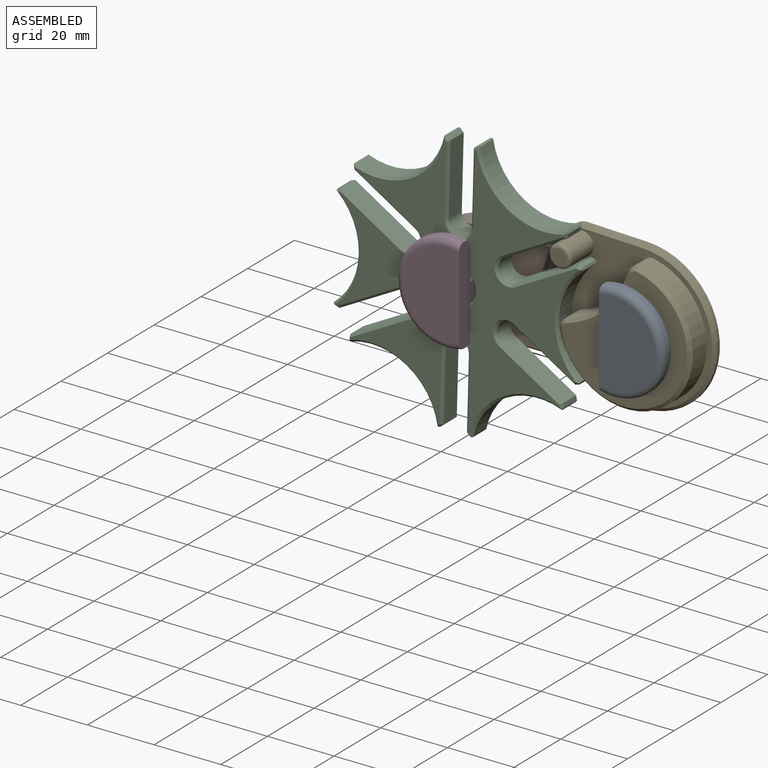
[diagram: assembled view]
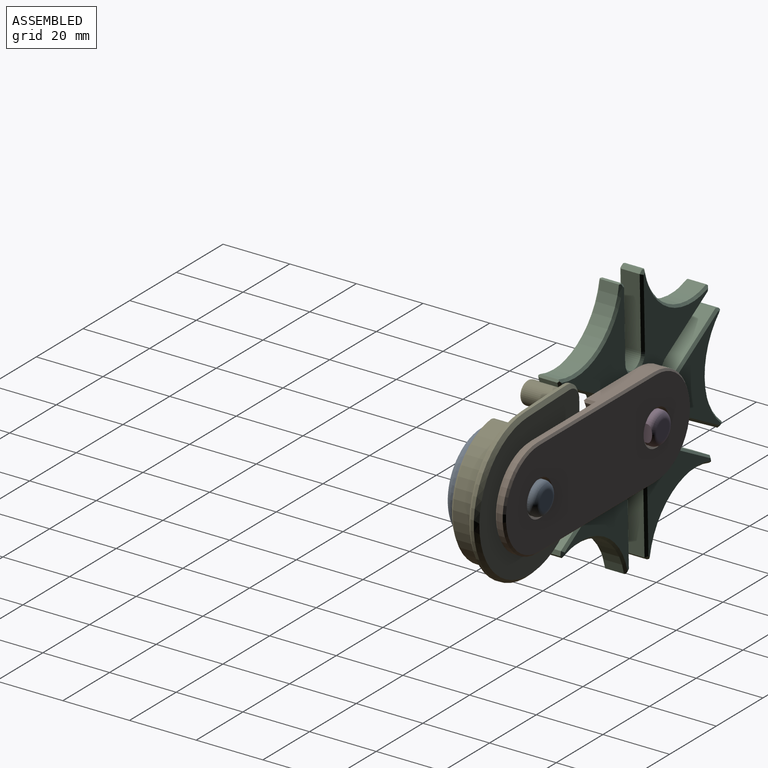
[diagram: assembled view, second angle]
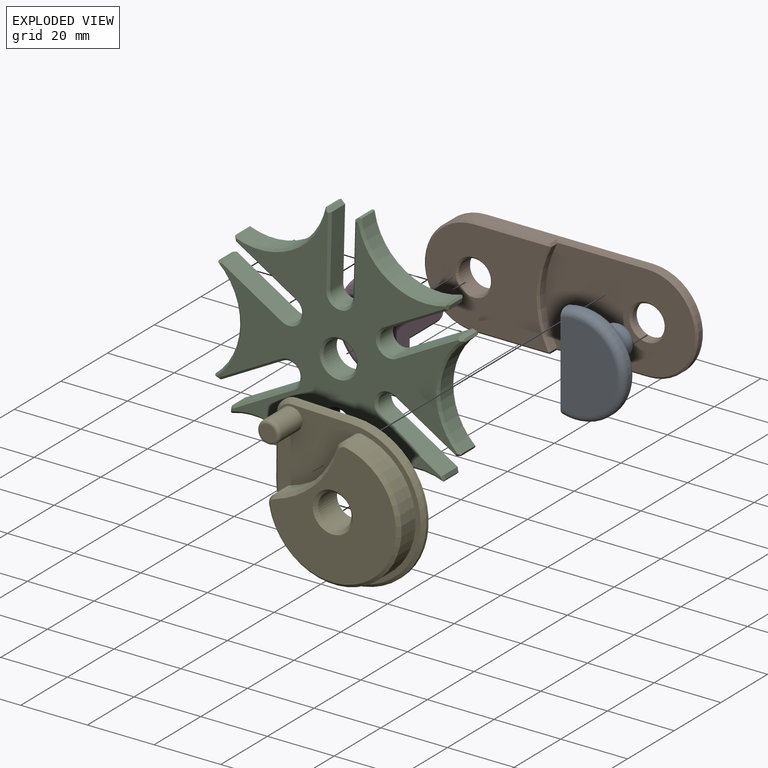
[diagram: exploded view]
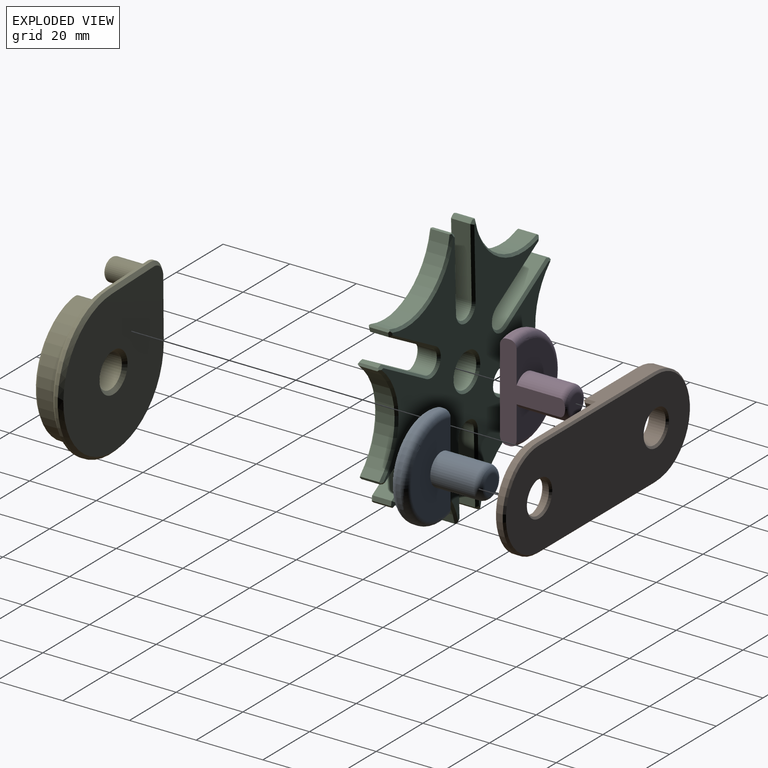
[diagram: exploded view, second angle]
ASSEMBLY  parts=5 mates=4
PART A: 9 faces, bbox 20x32.5x21.4 mm
  f0: torus R=13mm, axis (-1,0,0), area 166.3mm2, adj f1,f5,f8
  f1: plane 26x17mm, normal (-1,0,0), area 367.8mm2, adj f0,f8
  f2: plane 5.5x5.5mm, normal (1,0,0), area 23.8mm2, adj f6
  f3: cylinder r=4.75mm len=13mm, axis (-1,0,0), area 317.6mm2, adj f4,f6,f8
  f4: plane 26x17mm, normal (1,0,0), area 299.5mm2, adj f3,f7,f8
  f5: cylinder r=15mm len=30mm, axis (-1,0,0), area 55.2mm2, adj f0,f7,f8
  f6: torus R=2.75mm, axis (1,0,0), area 72mm2, adj f2,f3,f8
  f7: torus R=13mm, axis (1,0,0), area 166.3mm2, adj f4,f5,f8
  f8: plane 28.92x19.56mm, normal (0,0,-1), area 214mm2, adj f0,f1,f3,f4,f5,f6,f7
PART B: 29 faces, bbox 80x6x30 mm
  f0: plane 50x4.83mm, normal (0,0,1), area 159mm2, adj f2,f3,f14,f18,f20,f23
  f1: cylinder r=4.85mm len=9.7mm, axis (0,1,0), area 55.8mm2, adj f25,f27
  f2: cylinder r=15mm len=30mm, axis (0,1,0), area 86.4mm2, adj f0,f4,f19,f24
  f3: cylinder r=15mm len=30mm, axis (0,1,0), area 227.7mm2, adj f0,f4,f11,f21
  f4: plane 50x4.83mm, normal (0,0,-1), area 159mm2, adj f2,f3,f10,f15,f17,f22
  f5: cylinder r=4.85mm len=9.7mm, axis (0,1,0), area 147.3mm2, adj f26,f28
  f6: plane 36.88x28.83mm, normal (0,-1,0), area 812.4mm2, adj f10,f11,f13,f14,f28
  f7: plane 78.83x28.83mm, normal (0,1,0), area 1909mm2, adj f21,f22,f23,f24,f25,f26
  f8: cylinder r=30.5mm len=28.29mm, axis (0,-1,0), area 71.1mm2, adj f9,f13,f15,f18
  f9: plane 44.92x28.83mm, normal (0,-1,0), area 1079.2mm2, adj f8,f15,f17,f18,f19,f20,f27
  f10: plane 22.46x0.58mm, normal (0,-0.71,-0.71), area 18.5mm2, adj f4,f6,f11,f12
  f11: cone r=14.42mm half-angle=45deg, axis (0,1,0), area 38.1mm2, adj f3,f6,f10,f14
  f12: plane 0.85x0.58mm, normal (0.76,-0.46,-0.46), area 0.3mm2, adj f10,f13,f15
  f13: cone r=30.5mm half-angle=45deg, axis (0,-1,0), area 24.5mm2, adj f6,f8,f12,f16
  f14: plane 22.46x0.58mm, normal (0,-0.71,0.71), area 18.5mm2, adj f0,f6,f11,f16
  f15: plane 3x0.85mm, normal (0.86,0,-0.52), area 2.6mm2, adj f4,f8,f9,f12,f17
  f16: plane 0.85x0.58mm, normal (0.76,-0.46,0.46), area 0.3mm2, adj f13,f14,f18
  f17: plane 27.54x0.58mm, normal (0,-0.71,-0.71), area 22.6mm2, adj f4,f9,f15,f19
  f18: plane 3x0.85mm, normal (0.86,0,0.52), area 2.6mm2, adj f0,f8,f9,f16,f20
  f19: cone r=14.42mm half-angle=45deg, axis (0,1,0), area 38.1mm2, adj f2,f9,f17,f20
  f20: plane 27.54x0.58mm, normal (0,-0.71,0.71), area 22.6mm2, adj f0,f9,f18,f19
  f21: cone r=15mm half-angle=45deg, axis (0,-1,0), area 38.1mm2, adj f3,f7,f22,f23
  f22: plane 50x0.58mm, normal (0,0.71,-0.71), area 41.3mm2, adj f4,f7,f21,f24
  f23: plane 50x0.58mm, normal (0,0.71,0.71), area 41.3mm2, adj f0,f7,f21,f24
  f24: cone r=15mm half-angle=45deg, axis (0,-1,0), area 38.1mm2, adj f2,f7,f22,f23
  f25: cone r=5.43mm half-angle=45deg, axis (0,1,0), area 26.7mm2, adj f1,f7
  f26: cone r=5.43mm half-angle=45deg, axis (0,1,0), area 26.7mm2, adj f5,f7
  f27: cone r=4.85mm half-angle=45deg, axis (0,-1,0), area 26.7mm2, adj f1,f9
  f28: cone r=4.85mm half-angle=45deg, axis (0,-1,0), area 26.7mm2, adj f5,f6
PART C: 125 faces, bbox 74.2x7x79.5 mm
  f0: plane 21.33x5.6mm, normal (1,0,0), area 119.5mm2, adj f35,f47,f74,f111
  f1: cylinder r=40mm len=6.29mm, axis (0,1,0), area 4.9mm2, adj f2,f47,f70,f72,f107,f109
  f2: cylinder r=20mm len=26.33mm, axis (0,1,0), area 193.4mm2, adj f1,f3,f70,f107
  f3: cylinder r=40mm len=6.29mm, axis (0,1,0), area 4.9mm2, adj f2,f46,f68,f70,f105,f107
  f4: plane 18.48x10.67mm, normal (-0.5,0,-0.87), area 119.5mm2, adj f5,f46,f66,f103
  f5: cylinder r=3.5mm len=6.53mm, axis (0,1,0), area 61.6mm2, adj f4,f6,f64,f101
  f6: plane 18.48x10.67mm, normal (0.5,0,0.87), area 119.5mm2, adj f5,f45,f62,f99
  f7: cylinder r=40mm len=6.29mm, axis (0,1,0), area 4.9mm2, adj f8,f45,f58,f60,f95,f97
  f8: cylinder r=20mm len=30.4mm, axis (0,1,0), area 193.4mm2, adj f7,f9,f58,f95
  f9: cylinder r=40mm len=6.29mm, axis (0,1,0), area 4.9mm2, adj f8,f44,f56,f58,f93,f95
  f10: plane 18.48x10.67mm, normal (0.5,0,-0.87), area 119.5mm2, adj f11,f44,f54,f91
  f11: cylinder r=3.5mm len=6.53mm, axis (0,1,0), area 61.6mm2, adj f10,f12,f52,f89
  f12: plane 18.48x10.67mm, normal (-0.5,0,0.87), area 119.5mm2, adj f11,f43,f51,f88
  f13: cylinder r=40mm len=6.29mm, axis (0,1,0), area 4.9mm2, adj f14,f43,f53,f55,f90,f92
  f14: cylinder r=20mm len=26.33mm, axis (0,1,0), area 193.4mm2, adj f13,f15,f55,f92
  f15: cylinder r=40mm len=6.29mm, axis (0,1,0), area 4.9mm2, adj f14,f42,f55,f57,f92,f94
  f16: plane 21.33x5.6mm, normal (1,0,0), area 119.5mm2, adj f17,f42,f59,f96
  f17: cylinder r=3.5mm len=7mm, axis (0,1,0), area 61.6mm2, adj f16,f18,f61,f98
  f18: plane 21.33x5.6mm, normal (-1,0,0), area 119.5mm2, adj f17,f41,f63,f100
  f19: cylinder r=40mm len=6.29mm, axis (0,1,0), area 4.9mm2, adj f20,f41,f65,f67,f102,f104
  f20: cylinder r=20mm len=26.33mm, axis (0,1,0), area 193.4mm2, adj f19,f21,f67,f104
  f21: cylinder r=40mm len=6.29mm, axis (0,1,0), area 4.9mm2, adj f20,f40,f67,f69,f104,f106
  f22: plane 18.48x10.67mm, normal (0.5,0,0.87), area 119.5mm2, adj f23,f40,f71,f108
  f23: cylinder r=3.5mm len=6.53mm, axis (0,1,0), area 61.6mm2, adj f22,f24,f73,f110
  f24: plane 18.48x10.67mm, normal (-0.5,0,-0.87), area 119.5mm2, adj f23,f39,f75,f112
  f25: cylinder r=40mm len=6.29mm, axis (0,1,0), area 4.9mm2, adj f26,f39,f77,f79,f114,f116
  f26: cylinder r=20mm len=30.4mm, axis (0,1,0), area 193.4mm2, adj f25,f27,f79,f116
  f27: cylinder r=40mm len=6.29mm, axis (0,1,0), area 4.9mm2, adj f26,f50,f79,f81,f116,f118
  f28: plane 18.48x10.67mm, normal (-0.5,0,0.87), area 119.5mm2, adj f29,f50,f83,f120
  f29: cylinder r=3.5mm len=6.53mm, axis (0,1,0), area 61.6mm2, adj f28,f30,f85,f122
  f30: plane 18.48x10.67mm, normal (0.5,0,-0.87), area 119.5mm2, adj f29,f49,f86,f123
  f31: cylinder r=40mm len=6.29mm, axis (0,1,0), area 4.9mm2, adj f32,f49,f82,f84,f119,f121
  f32: cylinder r=20mm len=26.33mm, axis (0,1,0), area 193.4mm2, adj f31,f33,f82,f119
  f33: cylinder r=40mm len=6.29mm, axis (0,1,0), area 4.9mm2, adj f32,f48,f80,f82,f117,f119
  f34: plane 21.33x5.6mm, normal (-1,0,0), area 119.5mm2, adj f35,f48,f78,f115
  f35: cylinder r=3.5mm len=7mm, axis (0,1,0), area 61.6mm2, adj f0,f34,f76,f113
  f36: cylinder r=5mm len=10mm, axis (0,1,0), area 175.9mm2, adj f87,f124
  f37: plane 78.02x72.32mm, normal (0,-1,0), area 2219.8mm2, adj f51,f52,f53,f54,f55,f56,f57,f58
  f38: plane 78.02x72.32mm, normal (0,1,0), area 2219.8mm2, adj f88,f89,f90,f91,f92,f93,f94,f95
  f39: plane 5.6x1.3mm, normal (0.31,0,-0.95), area 7.7mm2, adj f24,f25,f77,f114
  f40: plane 5.6x1.34mm, normal (0.98,0,0.2), area 7.7mm2, adj f21,f22,f69,f106
  f41: plane 5.6x1.02mm, normal (-0.67,0,-0.75), area 7.7mm2, adj f18,f19,f65,f102
  f42: plane 5.6x1.02mm, normal (0.67,0,-0.75), area 7.7mm2, adj f15,f16,f57,f94
  f43: plane 5.6x1.34mm, normal (-0.98,0,0.2), area 7.7mm2, adj f12,f13,f53,f90
  f44: plane 5.6x1.3mm, normal (-0.31,0,-0.95), area 7.7mm2, adj f9,f10,f56,f93
  f45: plane 5.6x1.3mm, normal (-0.31,0,0.95), area 7.7mm2, adj f6,f7,f60,f97
  f46: plane 5.6x1.34mm, normal (-0.98,0,-0.2), area 7.7mm2, adj f3,f4,f68,f105
  f47: plane 5.6x1.02mm, normal (0.67,0,0.75), area 7.7mm2, adj f0,f1,f72,f109
  f48: plane 5.6x1.02mm, normal (-0.67,0,0.75), area 7.7mm2, adj f33,f34,f80,f117
  f49: plane 5.6x1.34mm, normal (0.98,0,-0.2), area 7.7mm2, adj f30,f31,f84,f121
  f50: plane 5.6x1.3mm, normal (0.31,0,0.95), area 7.7mm2, adj f27,f28,f81,f118
  f51: plane 18.83x11.12mm, normal (-0.35,-0.71,0.61), area 21mm2, adj f12,f37,f52,f53
  f52: cone r=3.5mm half-angle=45deg, axis (0,-1,0), area 12mm2, adj f11,f37,f51,f54
  f53: plane 1.71x0.91mm, normal (-0.69,-0.71,0.14), area 1.3mm2, adj f13,f37,f43,f51,f55
  f54: plane 18.55x11.27mm, normal (0.35,-0.71,-0.61), area 21mm2, adj f10,f37,f52,f56
  f55: cone r=20mm half-angle=45deg, axis (0,-1,0), area 34.6mm2, adj f13,f14,f15,f37,f53,f57
  f56: plane 1.49x1mm, normal (-0.22,-0.71,-0.67), area 1.3mm2, adj f9,f37,f44,f54,f58
  f57: plane 1.48x1.23mm, normal (0.47,-0.71,-0.53), area 1.3mm2, adj f15,f37,f42,f55,f59
  f58: cone r=20mm half-angle=45deg, axis (0,-1,0), area 34.6mm2, adj f7,f8,f9,f37,f56,f60
  f59: plane 21.33x0.7mm, normal (0.71,-0.71,0), area 21mm2, adj f16,f37,f57,f61
  f60: plane 1.49x1mm, normal (-0.22,-0.71,0.67), area 1.3mm2, adj f7,f37,f45,f58,f62
  f61: cone r=3.5mm half-angle=45deg, axis (0,-1,0), area 12mm2, adj f17,f37,f59,f63
  f62: plane 18.55x11.27mm, normal (0.35,-0.71,0.61), area 21mm2, adj f6,f37,f60,f64
  f63: plane 21.33x0.7mm, normal (-0.71,-0.71,0), area 21mm2, adj f18,f37,f61,f65
  f64: cone r=3.5mm half-angle=45deg, axis (0,-1,0), area 12mm2, adj f5,f37,f62,f66
  f65: plane 1.48x1.23mm, normal (-0.47,-0.71,-0.53), area 1.3mm2, adj f19,f37,f41,f63,f67
  f66: plane 18.83x11.12mm, normal (-0.35,-0.71,-0.61), area 21mm2, adj f4,f37,f64,f68
  f67: cone r=20mm half-angle=45deg, axis (0,-1,0), area 34.6mm2, adj f19,f20,f21,f37,f65,f69
  f68: plane 1.71x0.91mm, normal (-0.69,-0.71,-0.14), area 1.3mm2, adj f3,f37,f46,f66,f70
  f69: plane 1.71x0.91mm, normal (0.69,-0.71,0.14), area 1.3mm2, adj f21,f37,f40,f67,f71
  f70: cone r=20mm half-angle=45deg, axis (0,-1,0), area 34.6mm2, adj f1,f2,f3,f37,f68,f72
  f71: plane 18.83x11.12mm, normal (0.35,-0.71,0.61), area 21mm2, adj f22,f37,f69,f73
  f72: plane 1.48x1.23mm, normal (0.47,-0.71,0.53), area 1.3mm2, adj f1,f37,f47,f70,f74
  f73: cone r=3.5mm half-angle=45deg, axis (0,-1,0), area 12mm2, adj f23,f37,f71,f75
  f74: plane 21.33x0.7mm, normal (0.71,-0.71,0), area 21mm2, adj f0,f37,f72,f76
  f75: plane 18.55x11.27mm, normal (-0.35,-0.71,-0.61), area 21mm2, adj f24,f37,f73,f77
  f76: cone r=3.5mm half-angle=45deg, axis (0,-1,0), area 12mm2, adj f35,f37,f74,f78
  f77: plane 1.49x1mm, normal (0.22,-0.71,-0.67), area 1.3mm2, adj f25,f37,f39,f75,f79
  f78: plane 21.33x0.7mm, normal (-0.71,-0.71,0), area 21mm2, adj f34,f37,f76,f80
  f79: cone r=20mm half-angle=45deg, axis (0,-1,0), area 34.6mm2, adj f25,f26,f27,f37,f77,f81
  f80: plane 1.48x1.23mm, normal (-0.47,-0.71,0.53), area 1.3mm2, adj f33,f37,f48,f78,f82
  f81: plane 1.49x1mm, normal (0.22,-0.71,0.67), area 1.3mm2, adj f27,f37,f50,f79,f83
  f82: cone r=20mm half-angle=45deg, axis (0,-1,0), area 34.6mm2, adj f31,f32,f33,f37,f80,f84
  f83: plane 18.55x11.27mm, normal (-0.35,-0.71,0.61), area 21mm2, adj f28,f37,f81,f85
  f84: plane 1.71x0.91mm, normal (0.69,-0.71,-0.14), area 1.3mm2, adj f31,f37,f49,f82,f86
  f85: cone r=3.5mm half-angle=45deg, axis (0,-1,0), area 12mm2, adj f29,f37,f83,f86
  f86: plane 18.83x11.12mm, normal (0.35,-0.71,-0.61), area 21mm2, adj f30,f37,f84,f85
  f87: cone r=5mm half-angle=45deg, axis (0,-1,0), area 33.3mm2, adj f36,f37
  f88: plane 18.83x11.12mm, normal (-0.35,0.71,0.61), area 21mm2, adj f12,f38,f89,f90
  f89: cone r=4.2mm half-angle=45deg, axis (0,1,0), area 12mm2, adj f11,f38,f88,f91
  f90: plane 1.71x0.91mm, normal (-0.69,0.71,0.14), area 1.3mm2, adj f13,f38,f43,f88,f92
  f91: plane 18.55x11.27mm, normal (0.35,0.71,-0.61), area 21mm2, adj f10,f38,f89,f93
  f92: cone r=20.7mm half-angle=45deg, axis (0,1,0), area 34.6mm2, adj f13,f14,f15,f38,f90,f94
  f93: plane 1.49x1mm, normal (-0.22,0.71,-0.67), area 1.3mm2, adj f9,f38,f44,f91,f95
  f94: plane 1.48x1.23mm, normal (0.47,0.71,-0.53), area 1.3mm2, adj f15,f38,f42,f92,f96
  f95: cone r=20.7mm half-angle=45deg, axis (0,1,0), area 34.6mm2, adj f7,f8,f9,f38,f93,f97
  f96: plane 21.33x0.7mm, normal (0.71,0.71,0), area 21mm2, adj f16,f38,f94,f98
  f97: plane 1.49x1mm, normal (-0.22,0.71,0.67), area 1.3mm2, adj f7,f38,f45,f95,f99
  f98: cone r=4.2mm half-angle=45deg, axis (0,1,0), area 12mm2, adj f17,f38,f96,f100
  f99: plane 18.55x11.27mm, normal (0.35,0.71,0.61), area 21mm2, adj f6,f38,f97,f101
  f100: plane 21.33x0.7mm, normal (-0.71,0.71,0), area 21mm2, adj f18,f38,f98,f102
  f101: cone r=4.2mm half-angle=45deg, axis (0,1,0), area 12mm2, adj f5,f38,f99,f103
  f102: plane 1.48x1.23mm, normal (-0.47,0.71,-0.53), area 1.3mm2, adj f19,f38,f41,f100,f104
  f103: plane 18.83x11.12mm, normal (-0.35,0.71,-0.61), area 21mm2, adj f4,f38,f101,f105
  f104: cone r=20.7mm half-angle=45deg, axis (0,1,0), area 34.6mm2, adj f19,f20,f21,f38,f102,f106
  f105: plane 1.71x0.91mm, normal (-0.69,0.71,-0.14), area 1.3mm2, adj f3,f38,f46,f103,f107
  f106: plane 1.71x0.91mm, normal (0.69,0.71,0.14), area 1.3mm2, adj f21,f38,f40,f104,f108
  f107: cone r=20.7mm half-angle=45deg, axis (0,1,0), area 34.6mm2, adj f1,f2,f3,f38,f105,f109
  f108: plane 18.83x11.12mm, normal (0.35,0.71,0.61), area 21mm2, adj f22,f38,f106,f110
  f109: plane 1.48x1.23mm, normal (0.47,0.71,0.53), area 1.3mm2, adj f1,f38,f47,f107,f111
  f110: cone r=4.2mm half-angle=45deg, axis (0,1,0), area 12mm2, adj f23,f38,f108,f112
  f111: plane 21.33x0.7mm, normal (0.71,0.71,0), area 21mm2, adj f0,f38,f109,f113
  f112: plane 18.55x11.27mm, normal (-0.35,0.71,-0.61), area 21mm2, adj f24,f38,f110,f114
  f113: cone r=4.2mm half-angle=45deg, axis (0,1,0), area 12mm2, adj f35,f38,f111,f115
  f114: plane 1.49x1mm, normal (0.22,0.71,-0.67), area 1.3mm2, adj f25,f38,f39,f112,f116
  f115: plane 21.33x0.7mm, normal (-0.71,0.71,0), area 21mm2, adj f34,f38,f113,f117
  f116: cone r=20.7mm half-angle=45deg, axis (0,1,0), area 34.6mm2, adj f25,f26,f27,f38,f114,f118
  f117: plane 1.48x1.23mm, normal (-0.47,0.71,0.53), area 1.3mm2, adj f33,f38,f48,f115,f119
  f118: plane 1.49x1mm, normal (0.22,0.71,0.67), area 1.3mm2, adj f27,f38,f50,f116,f120
  f119: cone r=20.7mm half-angle=45deg, axis (0,1,0), area 34.6mm2, adj f31,f32,f33,f38,f117,f121
  f120: plane 18.55x11.27mm, normal (-0.35,0.71,0.61), area 21mm2, adj f28,f38,f118,f122
  f121: plane 1.71x0.91mm, normal (0.69,0.71,-0.14), area 1.3mm2, adj f31,f38,f49,f119,f123
  f122: cone r=4.2mm half-angle=45deg, axis (0,1,0), area 12mm2, adj f29,f38,f120,f123
  f123: plane 18.83x11.12mm, normal (0.35,0.71,-0.61), area 21mm2, adj f30,f38,f121,f122
  f124: cone r=5.7mm half-angle=45deg, axis (0,1,0), area 33.3mm2, adj f36,f38
PART D: same geometry as A
PART E: 29 faces, bbox 52.5x13x45 mm
  f0: plane 50.5x43mm, normal (0,1,0), area 487.8mm2, adj f7,f8,f10,f12,f13,f15,f16,f17
  f1: plane 12.75x12.5mm, normal (-0.7,0,-0.71), area 17.9mm2, adj f2,f4,f18,f22
  f2: cylinder r=22.5mm len=45mm, axis (0,1,0), area 105.6mm2, adj f1,f3,f17,f21
  f3: plane 12.75x12.5mm, normal (-0.7,0,0.71), area 17.9mm2, adj f2,f4,f15,f19
  f4: cylinder r=5mm len=7.14mm, axis (0,1,0), area 8mm2, adj f1,f3,f16,f20
  f5: cylinder r=5mm len=10mm, axis (0,1,0), area 251.3mm2, adj f23,f28
  f6: plane 50.5x43mm, normal (0,-1,0), area 1439.4mm2, adj f19,f20,f21,f22,f23
  f7: cylinder r=27.27mm len=25.42mm, axis (0,-1,0), area 158.6mm2, adj f0,f12,f13,f27
  f8: cylinder r=20mm len=40mm, axis (0,-1,0), area 519.1mm2, adj f0,f12,f13,f24
  f9: plane 38x30.49mm, normal (0,1,0), area 797.8mm2, adj f24,f25,f26,f27,f28
  f10: cylinder r=3.35mm len=9mm, axis (0,-1,0), area 189.4mm2, adj f0,f14
  f11: plane 4.7x4.7mm, normal (0,1,0), area 17.3mm2, adj f14
  f12: cylinder r=3mm len=6mm, axis (0,1,0), area 26.3mm2, adj f0,f7,f8,f25
  f13: cylinder r=3mm len=6mm, axis (0,1,0), area 26.3mm2, adj f0,f7,f8,f26
  f14: torus R=2.35mm, axis (0,-1,0), area 29.5mm2, adj f10,f11
  f15: plane 13.45x13.21mm, normal (-0.49,0.71,0.5), area 25.2mm2, adj f0,f3,f16,f17
  f16: cone r=5mm half-angle=45deg, axis (0,-1,0), area 10.1mm2, adj f0,f4,f15,f18
  f17: cone r=22.5mm half-angle=45deg, axis (0,-1,0), area 146mm2, adj f0,f2,f15,f18
  f18: plane 13.45x13.21mm, normal (-0.49,0.71,-0.5), area 25.2mm2, adj f0,f1,f16,f17
  f19: plane 13.45x13.21mm, normal (-0.49,-0.71,0.5), area 25.2mm2, adj f3,f6,f20,f21
  f20: cone r=4mm half-angle=45deg, axis (0,1,0), area 10.1mm2, adj f4,f6,f19,f22
  f21: cone r=21.5mm half-angle=45deg, axis (0,1,0), area 146mm2, adj f2,f6,f19,f22
  f22: plane 13.45x13.21mm, normal (-0.49,-0.71,-0.5), area 25.2mm2, adj f1,f6,f20,f21
  f23: cone r=5mm half-angle=45deg, axis (0,-1,0), area 48.9mm2, adj f5,f6
  f24: cone r=20mm half-angle=45deg, axis (0,-1,0), area 119.3mm2, adj f8,f9,f25,f26
  f25: cone r=2mm half-angle=45deg, axis (0,-1,0), area 5.2mm2, adj f9,f12,f24,f27
  f26: cone r=2mm half-angle=45deg, axis (0,-1,0), area 5.2mm2, adj f9,f13,f24,f27
  f27: cone r=28.27mm half-angle=45deg, axis (0,1,0), area 38.1mm2, adj f7,f9,f25,f26
  f28: cone r=6mm half-angle=45deg, axis (0,1,0), area 48.9mm2, adj f5,f9
PLACE A rot(axis=(0.58,0.58,0.58),120deg) t=(50,-18,0)mm
PLACE B at identity fixed
PLACE C rot(axis=(0.87,0,0.49),180deg) t=(0,-13,0)mm
PLACE D rot(axis=(-0.58,-0.58,0.58),120deg) t=(0,-18,0)mm
PLACE E rot(axis=(0.92,0,-0.39),180deg) t=(50,-6,0)mm
MATE revolute C.f36 <-> B.f5  axis (0,1,0) through (0,-6,0)mm
MATE fastened D.f0 <-> B.f5  axis (0,1,0) through (0,2,0)mm
MATE fastened A.f0 <-> B.f1  axis (0,1,0) through (50,2,0)mm
MATE revolute E.f5 <-> B.f1  axis (0,1,0) through (50,-3,0)mm
